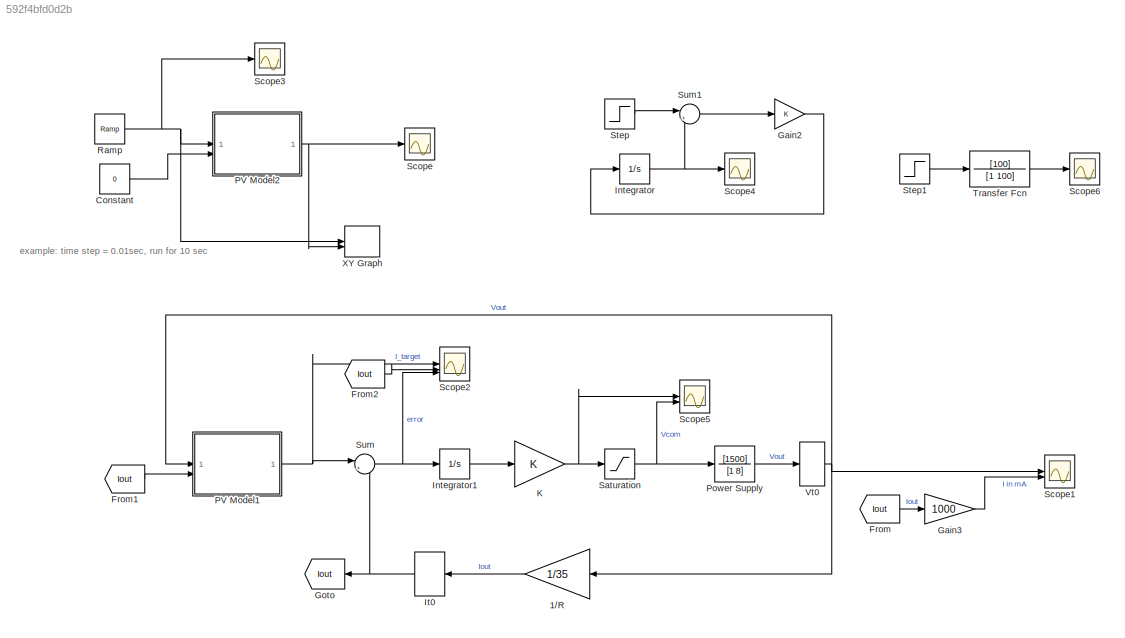
MODEL slx_592f4bfd0d2b
KIND model
CONFIG AbsTol = auto
CONFIG EnableMultiTasking = off
CONFIG FixedStep = 0.05
CONFIG MaxStep = auto
CONFIG MinStep = auto
CONFIG RelTol = 1e-3
CONFIG SampleTimeConstraint = Unconstrained
CONFIG SolverName = FixedStepAuto
CONFIG StartTime = 0.0
CONFIG StopTime = 10.0
BLOCK [Gain] 1//R
  Gain = 1/35
  NameLocation = top
BLOCK [Constant] Constant
  Commented = on
  Value = 0
BLOCK [From] From
  GotoTag = Iout
BLOCK [From] From1
  GotoTag = Iout
BLOCK [From] From2
  GotoTag = Iout
BLOCK [Gain] Gain2
  Commented = on
BLOCK [Gain] Gain3
  Gain = 1000
BLOCK [Goto] Goto
  GotoTag = Iout
  NameLocation = top
BLOCK [Integrator] Integrator
  Commented = on
BLOCK [Integrator] Integrator1
BLOCK [InitialCondition] It0
  Commented = through
  Value = 0.0
BLOCK [Gain] K
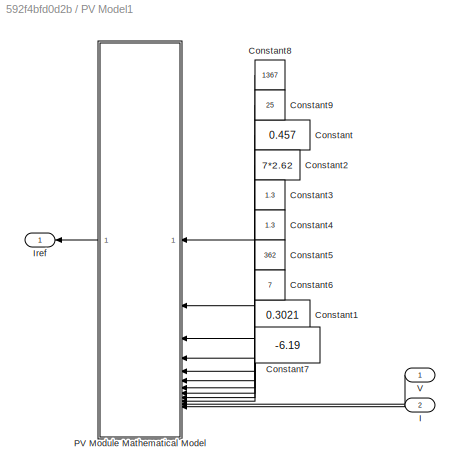
BLOCK [SubSystem] PV Model1
BLOCK [Constant] PV Model1/Constant
  Value = 0.457
BLOCK [Constant] PV Model1/Constant1
  Value = 0.3021
BLOCK [Constant] PV Model1/Constant2
  Value = 7*2.62
BLOCK [Constant] PV Model1/Constant3
  Value = 1.3
BLOCK [Constant] PV Model1/Constant4
  Value = 1.3
BLOCK [Constant] PV Model1/Constant5
  Value = 362
BLOCK [Constant] PV Model1/Constant6
  Value = 7
BLOCK [Constant] PV Model1/Constant7
  Value = -6.19
BLOCK [Constant] PV Model1/Constant8
  Value = 1367
BLOCK [Constant] PV Model1/Constant9
  Value = 25
BLOCK [Inport] PV Model1/I
  Port = 2
BLOCK [Outport] PV Model1/Iref
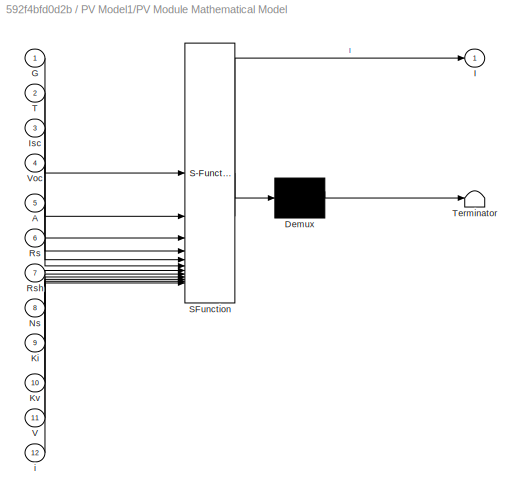
BLOCK [SubSystem] PV Model1/PV Module Mathematical Model
  ErrorFcn = Stateflow.Translate.translate
  PermitHierarchicalResolution = ExplicitOnly
  SFBlockType = MATLAB Function
  TreatAsAtomicUnit = on
BLOCK [Demux] PV Model1/PV Module Mathematical Model/ Demux 
  Outputs = 1
BLOCK [S-Function] PV Model1/PV Module Mathematical Model/ SFunction 
  EnableBusSupport = on
  FunctionName = sf_sfun
  PortCounts = [12 2]
  SFcnIsStateOwnerBlock = off
  SFunctionDeploymentMode = off
  Tag = Stateflow S-Function 2
BLOCK [Terminator] PV Model1/PV Module Mathematical Model/ Terminator 
BLOCK [Inport] PV Model1/PV Module Mathematical Model/A
  Port = 5
BLOCK [Inport] PV Model1/PV Module Mathematical Model/G
BLOCK [Outport] PV Model1/PV Module Mathematical Model/I
  VectorParamsAs1DForOutWhenUnconnected = off
BLOCK [Inport] PV Model1/PV Module Mathematical Model/Isc
  Port = 3
BLOCK [Inport] PV Model1/PV Module Mathematical Model/Ki
  Port = 9
BLOCK [Inport] PV Model1/PV Module Mathematical Model/Kv
  Port = 10
BLOCK [Inport] PV Model1/PV Module Mathematical Model/Ns
  Port = 8
BLOCK [Inport] PV Model1/PV Module Mathematical Model/Rs
  Port = 6
BLOCK [Inport] PV Model1/PV Module Mathematical Model/Rsh
  Port = 7
BLOCK [Inport] PV Model1/PV Module Mathematical Model/T
  Port = 2
BLOCK [Inport] PV Model1/PV Module Mathematical Model/V
  Port = 11
BLOCK [Inport] PV Model1/PV Module Mathematical Model/Voc
  Port = 4
BLOCK [Inport] PV Model1/PV Module Mathematical Model/i
  Port = 12
BLOCK [Inport] PV Model1/V
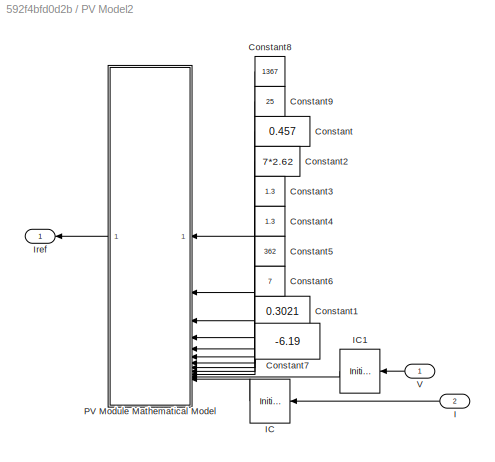
BLOCK [SubSystem] PV Model2
  Commented = on
BLOCK [Constant] PV Model2/Constant
  Value = 0.457
BLOCK [Constant] PV Model2/Constant1
  Value = 0.3021
BLOCK [Constant] PV Model2/Constant2
  Value = 7*2.62
BLOCK [Constant] PV Model2/Constant3
  Value = 1.3
BLOCK [Constant] PV Model2/Constant4
  Value = 1.3
BLOCK [Constant] PV Model2/Constant5
  Value = 362
BLOCK [Constant] PV Model2/Constant6
  Value = 7
BLOCK [Constant] PV Model2/Constant7
  Value = -6.19
BLOCK [Constant] PV Model2/Constant8
  Value = 1367
BLOCK [Constant] PV Model2/Constant9
  Value = 25
BLOCK [Inport] PV Model2/I
  Port = 2
BLOCK [InitialCondition] PV Model2/IC
  Value = 0.4
BLOCK [InitialCondition] PV Model2/IC1
  Value = 15
BLOCK [Outport] PV Model2/Iref
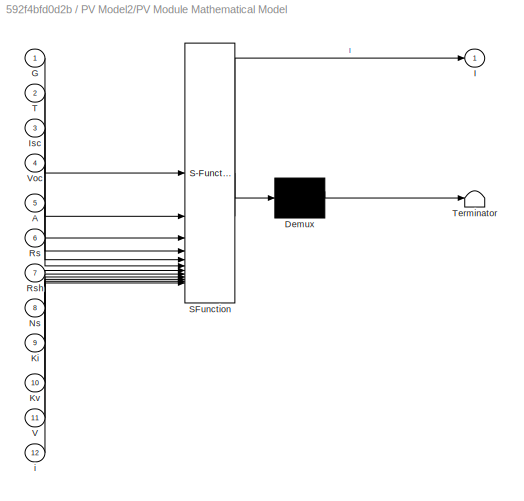
BLOCK [SubSystem] PV Model2/PV Module Mathematical Model
  ErrorFcn = Stateflow.Translate.translate
  PermitHierarchicalResolution = ExplicitOnly
  SFBlockType = MATLAB Function
  TreatAsAtomicUnit = on
BLOCK [Demux] PV Model2/PV Module Mathematical Model/ Demux 
  Outputs = 1
BLOCK [S-Function] PV Model2/PV Module Mathematical Model/ SFunction 
  EnableBusSupport = on
  FunctionName = sf_sfun
  PortCounts = [12 2]
  SFcnIsStateOwnerBlock = off
  SFunctionDeploymentMode = off
  Tag = Stateflow S-Function 3
BLOCK [Terminator] PV Model2/PV Module Mathematical Model/ Terminator 
BLOCK [Inport] PV Model2/PV Module Mathematical Model/A
  Port = 5
BLOCK [Inport] PV Model2/PV Module Mathematical Model/G
BLOCK [Outport] PV Model2/PV Module Mathematical Model/I
  VectorParamsAs1DForOutWhenUnconnected = off
BLOCK [Inport] PV Model2/PV Module Mathematical Model/Isc
  Port = 3
BLOCK [Inport] PV Model2/PV Module Mathematical Model/Ki
  Port = 9
BLOCK [Inport] PV Model2/PV Module Mathematical Model/Kv
  Port = 10
BLOCK [Inport] PV Model2/PV Module Mathematical Model/Ns
  Port = 8
BLOCK [Inport] PV Model2/PV Module Mathematical Model/Rs
  Port = 6
BLOCK [Inport] PV Model2/PV Module Mathematical Model/Rsh
  Port = 7
BLOCK [Inport] PV Model2/PV Module Mathematical Model/T
  Port = 2
BLOCK [Inport] PV Model2/PV Module Mathematical Model/V
  Port = 11
BLOCK [Inport] PV Model2/PV Module Mathematical Model/Voc
  Port = 4
BLOCK [Inport] PV Model2/PV Module Mathematical Model/i
  Port = 12
BLOCK [Inport] PV Model2/V
BLOCK [TransferFcn] Power Supply
  Denominator = [1 8]
  Numerator = [1500]
BLOCK [Reference] Ramp  REF=simulink/Sources/Ramp
  Commented = on
  SourceBlock = simulink/Sources/Ramp
  SourceType = Ramp
BLOCK [Saturate] Saturation
  LowerLimit = 0
  UpperLimit = 18.8
BLOCK [Scope] Scope
  Commented = on
  Floating = off
  NumInputPorts = 1
  ScopeSpecificationString = Simulink.scopes.TimeScopeBlockCfg('CurrentConfiguration', extmgr.ConfigurationSet(extmgr.Configuration('Core','General UI',true),extmgr.Configuration('Core','Source UI',true),extmgr.Configuration('Sources','WiredSimulink',true,'DataLoggingVariableName','ScopeData2'),extmgr.Configuration('Visuals','Time Domain',true,'SerializedDisplays',{struct('MinYLimReal','-0.05712','MaxYLimReal','0.51413','YLab...<+1396ch>
BLOCK [Scope] Scope1
  Floating = off
  NumInputPorts = 2
  ScopeSpecificationString = Simulink.scopes.TimeScopeBlockCfg('CurrentConfiguration', extmgr.ConfigurationSet(extmgr.Configuration('Core','General UI',true),extmgr.Configuration('Core','Source UI',true),extmgr.Configuration('Sources','WiredSimulink',true,'DataLoggingVariableName','ScopeData1'),extmgr.Configuration('Visuals','Time Domain',true,'SerializedDisplays',{struct('MinYLimReal','-2.12329','MaxYLimReal','19.12481','YLa...<+2148ch>
BLOCK [Scope] Scope2
  Floating = off
  NumInputPorts = 3
  ScopeSpecificationString = Simulink.scopes.TimeScopeBlockCfg('CurrentConfiguration', extmgr.ConfigurationSet(extmgr.Configuration('Core','General UI',true),extmgr.Configuration('Core','Source UI',true),extmgr.Configuration('Sources','WiredSimulink',true),extmgr.Configuration('Visuals','Time Domain',true,'SerializedDisplays',{struct('MinYLimReal','-0.05736','MaxYLimReal','0.51415','YLabelReal','','MinYLimMag','0.00000','MaxY...<+1554ch>
BLOCK [Scope] Scope3
  Commented = on
  Floating = off
  NumInputPorts = 1
  ScopeSpecificationString = Simulink.scopes.TimeScopeBlockCfg('CurrentConfiguration', extmgr.ConfigurationSet(extmgr.Configuration('Core','General UI',true),extmgr.Configuration('Core','Source UI',true),extmgr.Configuration('Sources','WiredSimulink',true,'DataLoggingVariableName','ScopeData3'),extmgr.Configuration('Visuals','Time Domain',true,'SerializedDisplays',{struct('MinYLimReal','-2.375','MaxYLimReal','21.375','YLabelR...<+1355ch>
BLOCK [Scope] Scope4
  Commented = on
  Floating = off
  NumInputPorts = 1
  ScopeSpecificationString = Simulink.scopes.TimeScopeBlockCfg('CurrentConfiguration', extmgr.ConfigurationSet(extmgr.Configuration('Core','General UI',true),extmgr.Configuration('Core','Source UI',true),extmgr.Configuration('Sources','WiredSimulink',true,'DataLoggingVariableName','ScopeData1'),extmgr.Configuration('Visuals','Time Domain',true,'SerializedDisplays',{struct('MinYLimReal','-0.12498','MaxYLimReal','1.12486','YLab...<+1369ch>
BLOCK [Scope] Scope5
  Floating = off
  NumInputPorts = 2
  ScopeSpecificationString = Simulink.scopes.TimeScopeBlockCfg('CurrentConfiguration', extmgr.ConfigurationSet(extmgr.Configuration('Core','General UI',true),extmgr.Configuration('Core','Source UI',true),extmgr.Configuration('Sources','WiredSimulink',true,'DataLoggingVariableName','ScopeData2'),extmgr.Configuration('Visuals','Time Domain',true,'SerializedDisplays',{struct('MinYLimReal','-1.96485','MaxYLimReal','17.68365','YLa...<+1507ch>
BLOCK [Scope] Scope6
  Floating = off
  NumInputPorts = 1
  ScopeSpecificationString = Simulink.scopes.TimeScopeBlockCfg('CurrentConfiguration', extmgr.ConfigurationSet(extmgr.Configuration('Core','General UI',true),extmgr.Configuration('Core','Source UI',true),extmgr.Configuration('Sources','WiredSimulink',true,'DataLoggingVariableName','ScopeData3'),extmgr.Configuration('Visuals','Time Domain',true,'SerializedDisplays',{struct('MinYLimReal','-0.125','MaxYLimReal','1.125','YLabelRe...<+1405ch>
BLOCK [Step] Step
  Commented = on
  SampleTime = 0
BLOCK [Step] Step1
  SampleTime = 0
BLOCK [Sum] Sum
  Inputs = |+-
BLOCK [Sum] Sum1
  Commented = on
  Inputs = |+-
BLOCK [TransferFcn] Transfer Fcn
  Denominator = [1 100]
  Numerator = [100]
BLOCK [InitialCondition] Vt0
  NameLocation = top
  Value = 0
BLOCK [Record] XY Graph
  Commented = on
  CompatibilityTag = XY
  FileSettingsInternal = {"entries":[{"content":{"excelSettings":{"content":{},"type":"Streamout.ExcelSettings"}},"type":"Streamout.FileSettingStorage","uuid":"914085eb-a8da-4e62-ba7d-c15c726b2b54"}],"packageUris":["http://schema.mathworks.com/mf0/streamout_blocks/R2020a"],"version":"1.0"}
  Layout = [1 1]
  SignalsInternal = {"entries":[{"content":{"signals":[{"content":{"blockPath":["control_loop_v01/XY Graph"],"channel":[],"dimensions":[1],"domain":"control_loop_v01/XY Graph","lineColor":"#a2142f","plots":[1],"port":1,"sid":[],"signalID":8,"signalName":"Ramp"},"type":"RecordBlkView.Signal","uuid":"80a78c32-fe05-49ae-b46e-e4b479ed4a3a"},{"content":{"blockPath":["control_loop_v01/XY Graph"],"channel":[],"dimensions":[...<+385ch>
  VisualizationBindings = {"xyplotplugin":{"info":[{"series":[{"bindingParametersList":[{"parameter":"X-Axis","signalID":8,"signalName":"Ramp"},{"parameter":"Y-Axis","signalID":11,"signalName":"PV Model2"}],"seriesID":26463}],"subplotID":1}]}}
ANNOTATION (root): example: time step = 0.01sec, run for 10 sec
LINE 1//R:1 -> It0:1
LINE Constant:1 -> PV Model2:2
LINE From1:1 -> PV Model1:2
LINE From2:1 -> Scope2:2
LINE From:1 -> Gain3:1
LINE Gain2:1 -> Integrator:1
LINE Gain3:1 -> Scope1:2
LINE Integrator1:1 -> K:1
NET Integrator:1 -> Scope4:1, Sum1:2
NET It0:1 -> Goto:1, Sum:2
NET K:1 -> Saturation:1, Scope5:1
LINE PV Model1/Constant1:1 -> PV Model1/PV Module Mathematical Model:9
LINE PV Model1/Constant2:1 -> PV Model1/PV Module Mathematical Model:4
LINE PV Model1/Constant3:1 -> PV Model1/PV Module Mathematical Model:5
LINE PV Model1/Constant4:1 -> PV Model1/PV Module Mathematical Model:6
LINE PV Model1/Constant5:1 -> PV Model1/PV Module Mathematical Model:7
LINE PV Model1/Constant6:1 -> PV Model1/PV Module Mathematical Model:8
LINE PV Model1/Constant7:1 -> PV Model1/PV Module Mathematical Model:10
LINE PV Model1/Constant8:1 -> PV Model1/PV Module Mathematical Model:1
LINE PV Model1/Constant9:1 -> PV Model1/PV Module Mathematical Model:2
LINE PV Model1/Constant:1 -> PV Model1/PV Module Mathematical Model:3
LINE PV Model1/I:1 -> PV Model1/PV Module Mathematical Model:12
LINE PV Model1/PV Module Mathematical Model:1 -> PV Model1/Iref:1
LINE PV Model1/V:1 -> PV Model1/PV Module Mathematical Model:11
NET PV Model1:1 -> Scope2:1, Sum:1
LINE PV Model2/Constant1:1 -> PV Model2/PV Module Mathematical Model:9
LINE PV Model2/Constant2:1 -> PV Model2/PV Module Mathematical Model:4
LINE PV Model2/Constant3:1 -> PV Model2/PV Module Mathematical Model:5
LINE PV Model2/Constant4:1 -> PV Model2/PV Module Mathematical Model:6
LINE PV Model2/Constant5:1 -> PV Model2/PV Module Mathematical Model:7
LINE PV Model2/Constant6:1 -> PV Model2/PV Module Mathematical Model:8
LINE PV Model2/Constant7:1 -> PV Model2/PV Module Mathematical Model:10
LINE PV Model2/Constant8:1 -> PV Model2/PV Module Mathematical Model:1
LINE PV Model2/Constant9:1 -> PV Model2/PV Module Mathematical Model:2
LINE PV Model2/Constant:1 -> PV Model2/PV Module Mathematical Model:3
LINE PV Model2/I:1 -> PV Model2/IC:1
LINE PV Model2/IC1:1 -> PV Model2/PV Module Mathematical Model:11
LINE PV Model2/IC:1 -> PV Model2/PV Module Mathematical Model:12
LINE PV Model2/PV Module Mathematical Model:1 -> PV Model2/Iref:1
LINE PV Model2/V:1 -> PV Model2/IC1:1
NET PV Model2:1 -> Scope:1, XY Graph:2
LINE Power Supply:1 -> Vt0:1
NET Ramp:1 -> PV Model2:1, Scope3:1, XY Graph:1
NET Saturation:1 -> Power Supply:1, Scope5:2
LINE Step1:1 -> Transfer Fcn:1
LINE Step:1 -> Sum1:1
LINE Sum1:1 -> Gain2:1
NET Sum:1 -> Integrator1:1, Scope2:3
LINE Transfer Fcn:1 -> Scope6:1
NET Vt0:1 -> 1//R:1, PV Model1:1, Scope1:1
note: NET lines group one-source signal fan-out (src -> all destinations, sorted); 1:1 wires keep LINE
CHART PV Model1/PV Module
Mathematical Model states=1 transitions=1
  STATE_LABEL 'eML_blk_kernel()'
  STATE_LABEL 'SCRIPT:\nfunction I = fcn(G,T,Isc,Voc,A,Rs,Rsh,Ns,Ki,Kv,V,i)\n    \n    q = 1.6e-19;                          % Electron charge\n    k = 1.38e-23;                         % Boltzmann constant\n    Tcell = 273+T;                        % Cell temperature in Kelvin\n    vt=(A*k*Tcell*Ns)/q;                  % Thermal voltage Equation(5)\n        \n    Isc_T = Isc+((Isc*(Ki/1000))*(T-25));  % Isc temperature...<+491ch>'
CHART PV Model2/PV Module
Mathematical Model states=1 transitions=1
  STATE_LABEL 'eML_blk_kernel()'
  STATE_LABEL 'SCRIPT:\nfunction I = fcn(G,T,Isc,Voc,A,Rs,Rsh,Ns,Ki,Kv,V,i)\n    \n    q = 1.6e-19;                          % Electron charge\n    k = 1.38e-23;                         % Boltzmann constant\n    Tcell = 273+T;                        % Cell temperature in Kelvin\n    vt=(A*k*Tcell*Ns)/q;                  % Thermal voltage Equation(5)\n        \n    Isc_T = Isc+((Isc*(Ki/1000))*(T-25));  % Isc temperature...<+491ch>'
CHART  states=0 transitions=0
CHART  states=0 transitions=0
